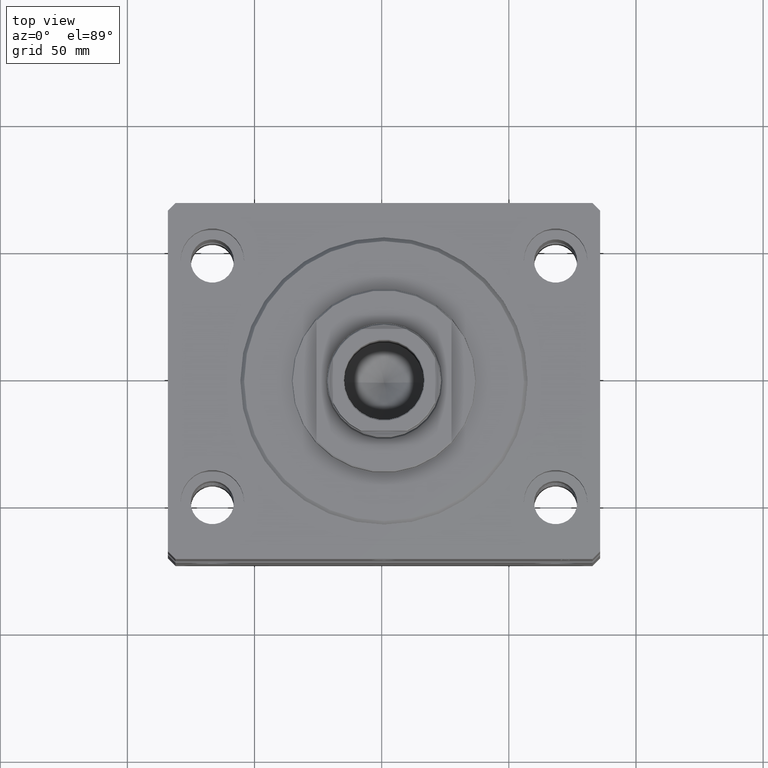
[diagram: clean part render]
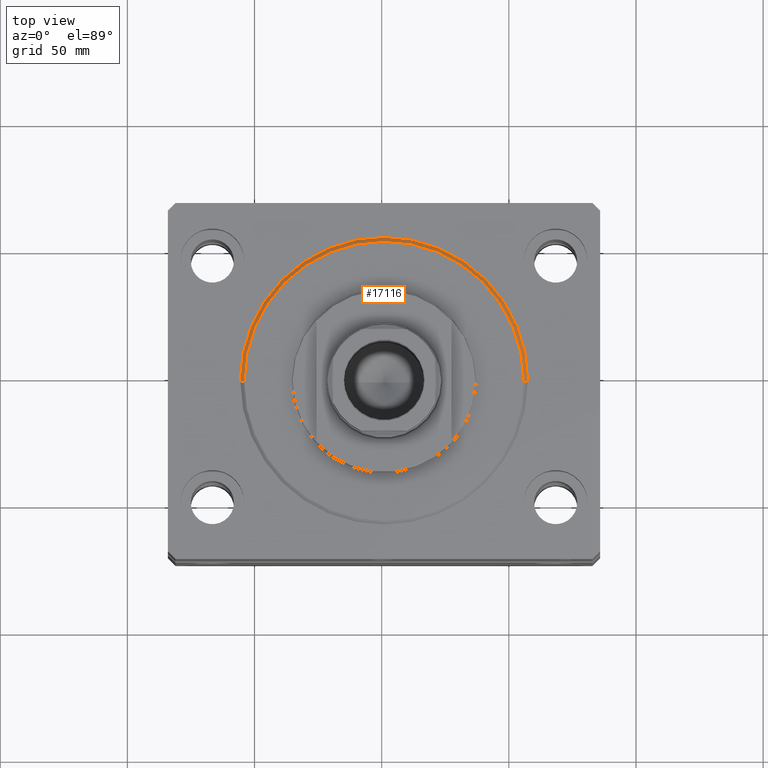
[diagram: same view with one face highlighted and labeled with its STEP entity id]
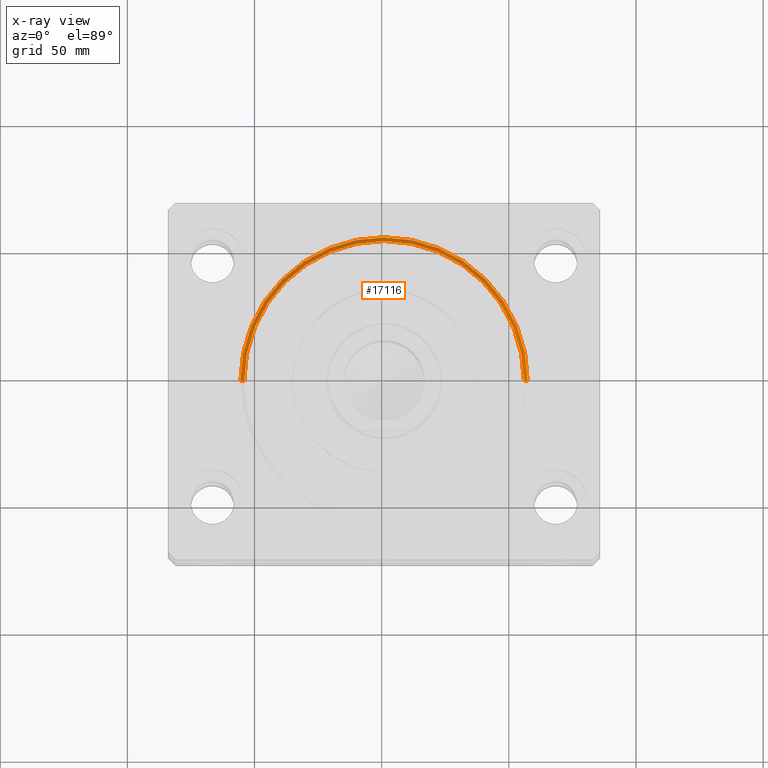
[diagram: x-ray of the same camera — body ghosted, the highlighted face saturated]
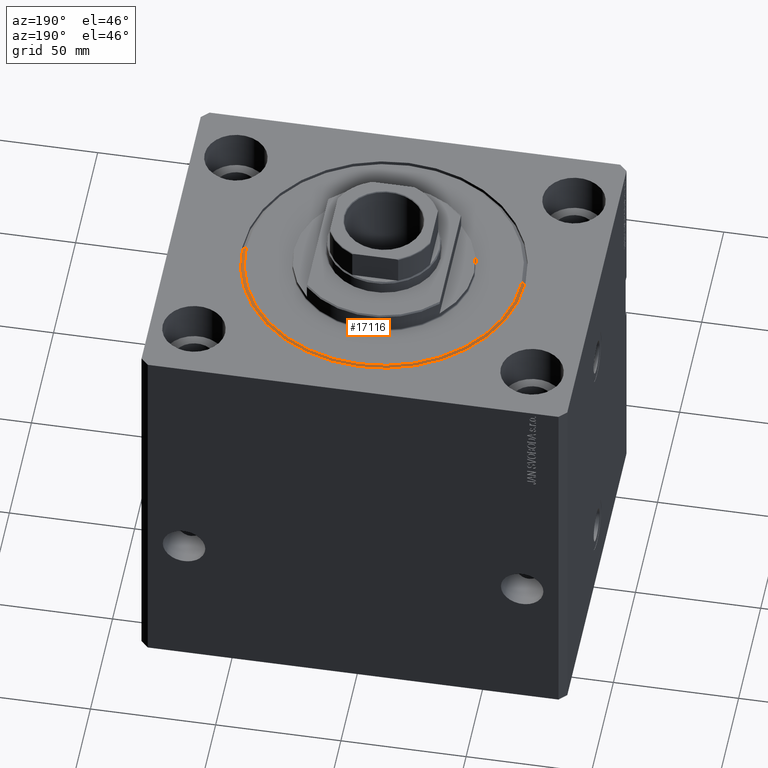
[diagram: same view with one face highlighted and labeled with its STEP entity id]
A machine part, top view. The second image highlights one B-rep face of the part: STEP entity #17116.
The next image is the same camera in x-ray: the body ghosted, the highlighted face saturated — about 0% of this face is hidden behind the body in this view.
A second angle (auxiliary view) of the same face is appended — the face is thin or edge-on in the first view.
In plain terms, the highlighted conical surface has half-angle 45 deg.
Its self-contained STEP definition (entity closure, byte-faithful):
#878 = CARTESIAN_POINT ( 'NONE',  ( -56.50000000000000711, 6.919254415182546126E-15, 1.499999999999994449 ) ) ;
#1799 = DIRECTION ( 'NONE',  ( -0.7071067811865459074, 8.659560562354911904E-17, 0.7071067811865491270 ) ) ;
#3622 = AXIS2_PLACEMENT_3D ( 'NONE', #13817, #34826, #27362 ) ;
#6448 = VERTEX_POINT ( 'NONE', #32950 ) ;
#7052 = DIRECTION ( 'NONE',  ( 1.000000000000000000, 0.000000000000000000, 0.000000000000000000 ) ) ;
#7370 = CARTESIAN_POINT ( 'NONE',  ( 0.000000000000000000, 0.000000000000000000, 1.499999999999994449 ) ) ;
#8058 = DIRECTION ( 'NONE',  ( -0.000000000000000000, -0.000000000000000000, 1.000000000000000000 ) ) ;
#9793 = CARTESIAN_POINT ( 'NONE',  ( -56.50000000000000711, 0.000000000000000000, 1.499999999999994449 ) ) ;
#9847 = VECTOR ( 'NONE', #30331, 1000.000000000000000 ) ;
#11299 = AXIS2_PLACEMENT_3D ( 'NONE', #17602, #39056, #7052 ) ;
#13817 = CARTESIAN_POINT ( 'NONE',  ( 0.000000000000000000, 0.000000000000000000, 1.499999999999994449 ) ) ;
#15797 = VERTEX_POINT ( 'NONE', #42517 ) ;
#17094 = FACE_OUTER_BOUND ( 'NONE', #35581, .T. ) ;
#17116 = ADVANCED_FACE ( 'NONE', ( #17094 ), #29022, .T. ) ;
#17602 = CARTESIAN_POINT ( 'NONE',  ( 0.000000000000000000, 0.000000000000000000, 0.000000000000000000 ) ) ;
#17743 = ORIENTED_EDGE ( 'NONE', *, *, #24126, .T. ) ;
#18293 = VERTEX_POINT ( 'NONE', #9793 ) ;
#22328 = DIRECTION ( 'NONE',  ( 1.000000000000000000, 0.000000000000000000, 0.000000000000000000 ) ) ;
#24126 = EDGE_CURVE ( 'NONE', #36793, #18293, #44107, .T. ) ;
#25482 = CIRCLE ( 'NONE', #11299, 55.00000000000002132 ) ;
#27153 = ORIENTED_EDGE ( 'NONE', *, *, #43789, .F. ) ;
#27362 = DIRECTION ( 'NONE',  ( 1.000000000000000000, 0.000000000000000000, 0.000000000000000000 ) ) ;
#29022 = CONICAL_SURFACE ( 'NONE', #3622, 56.50000000000000711, 0.7853981633974460586 ) ;
#30331 = DIRECTION ( 'NONE',  ( 0.7071067811865459074, 0.000000000000000000, 0.7071067811865491270 ) ) ;
#32478 = ORIENTED_EDGE ( 'NONE', *, *, #41932, .F. ) ;
#32950 = CARTESIAN_POINT ( 'NONE',  ( 55.00000000000002132, 0.000000000000000000, 0.000000000000000000 ) ) ;
#33661 = CIRCLE ( 'NONE', #43373, 56.50000000000000711 ) ;
#34826 = DIRECTION ( 'NONE',  ( -0.000000000000000000, -0.000000000000000000, 1.000000000000000000 ) ) ;
#35581 = EDGE_LOOP ( 'NONE', ( #45079, #17743, #32478, #27153 ) ) ;
#36793 = VERTEX_POINT ( 'NONE', #40381 ) ;
#38548 = EDGE_CURVE ( 'NONE', #36793, #6448, #25482, .T. ) ;
#39056 = DIRECTION ( 'NONE',  ( -0.000000000000000000, -0.000000000000000000, -1.000000000000000000 ) ) ;
#40112 = VECTOR ( 'NONE', #1799, 1000.000000000000000 ) ;
#40381 = CARTESIAN_POINT ( 'NONE',  ( -55.00000000000002132, 6.827405905246496343E-15, 0.000000000000000000 ) ) ;
#40634 = CARTESIAN_POINT ( 'NONE',  ( 56.50000000000000711, 0.000000000000000000, 1.499999999999994449 ) ) ;
#41932 = EDGE_CURVE ( 'NONE', #15797, #18293, #33661, .T. ) ;
#42517 = CARTESIAN_POINT ( 'NONE',  ( 56.50000000000000711, 6.919254415182546126E-15, 1.499999999999994449 ) ) ;
#43373 = AXIS2_PLACEMENT_3D ( 'NONE', #7370, #8058, #22328 ) ;
#43789 = EDGE_CURVE ( 'NONE', #6448, #15797, #44612, .T. ) ;
#44107 = LINE ( 'NONE', #878, #40112 ) ;
#44612 = LINE ( 'NONE', #40634, #9847 ) ;
#45079 = ORIENTED_EDGE ( 'NONE', *, *, #38548, .F. ) ;